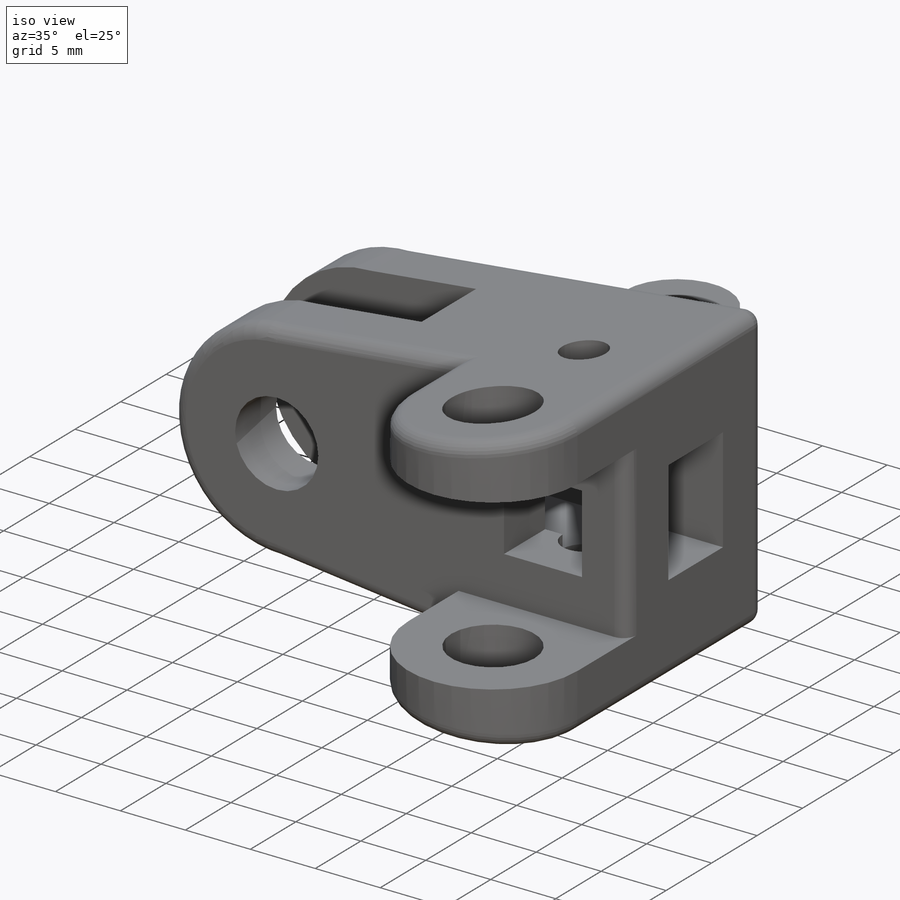
[diagram: iso view]
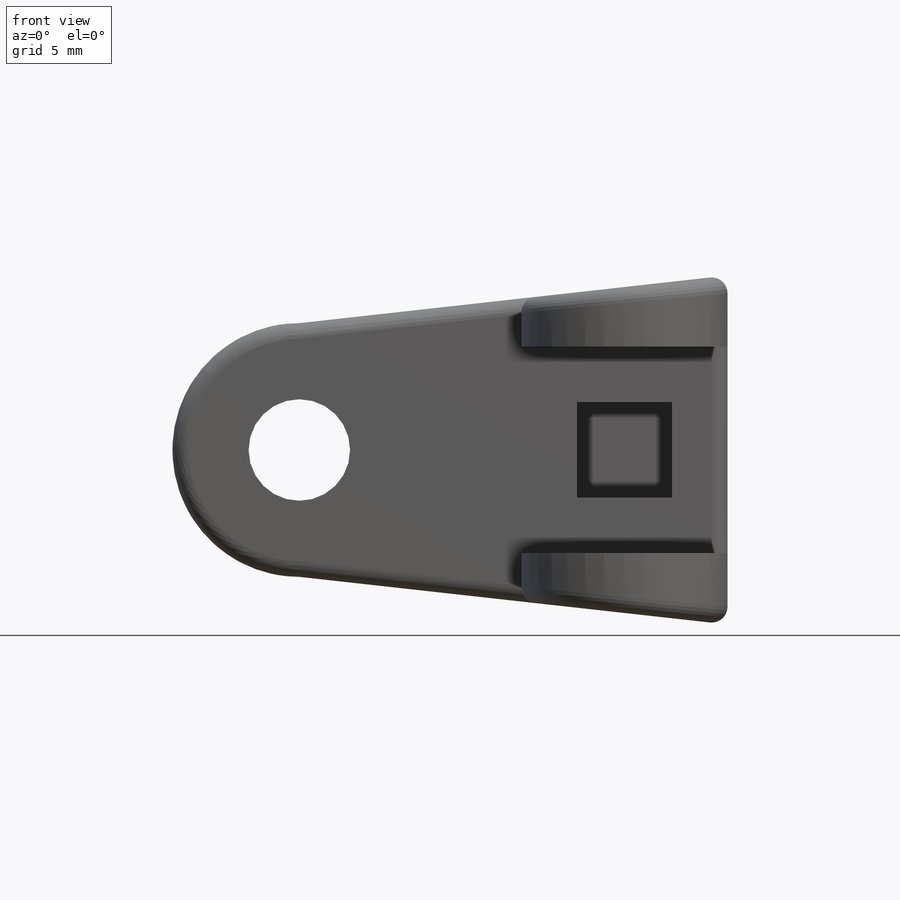
[diagram: front view]
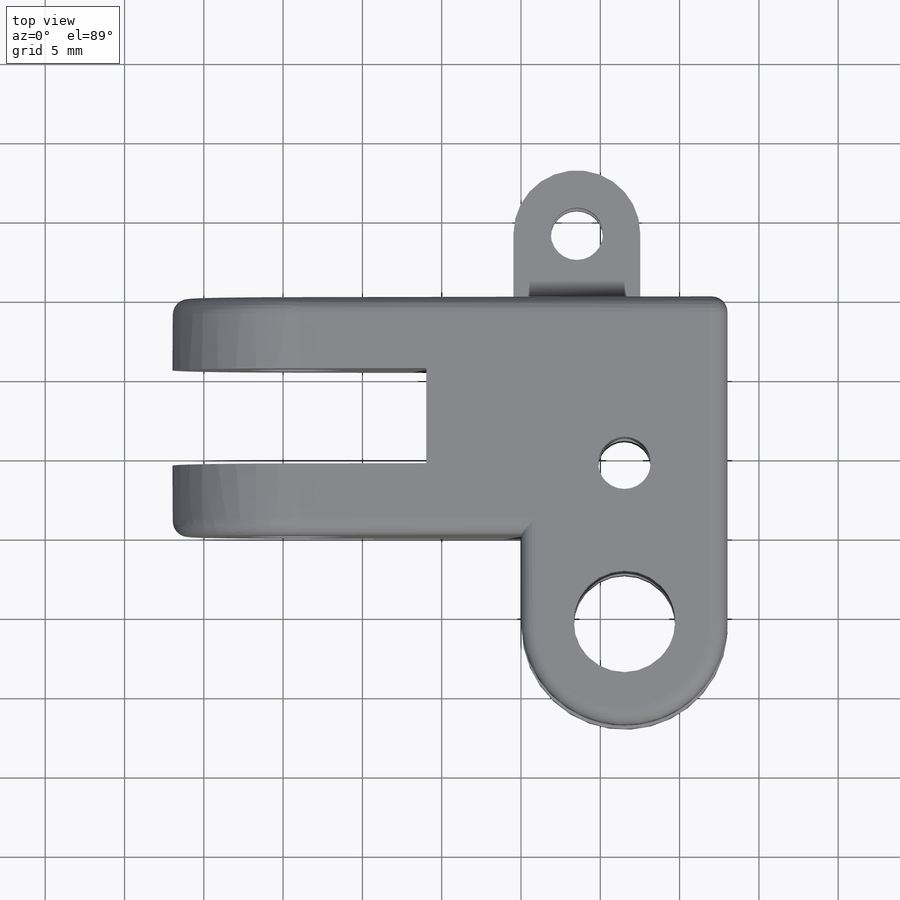
[diagram: top view]
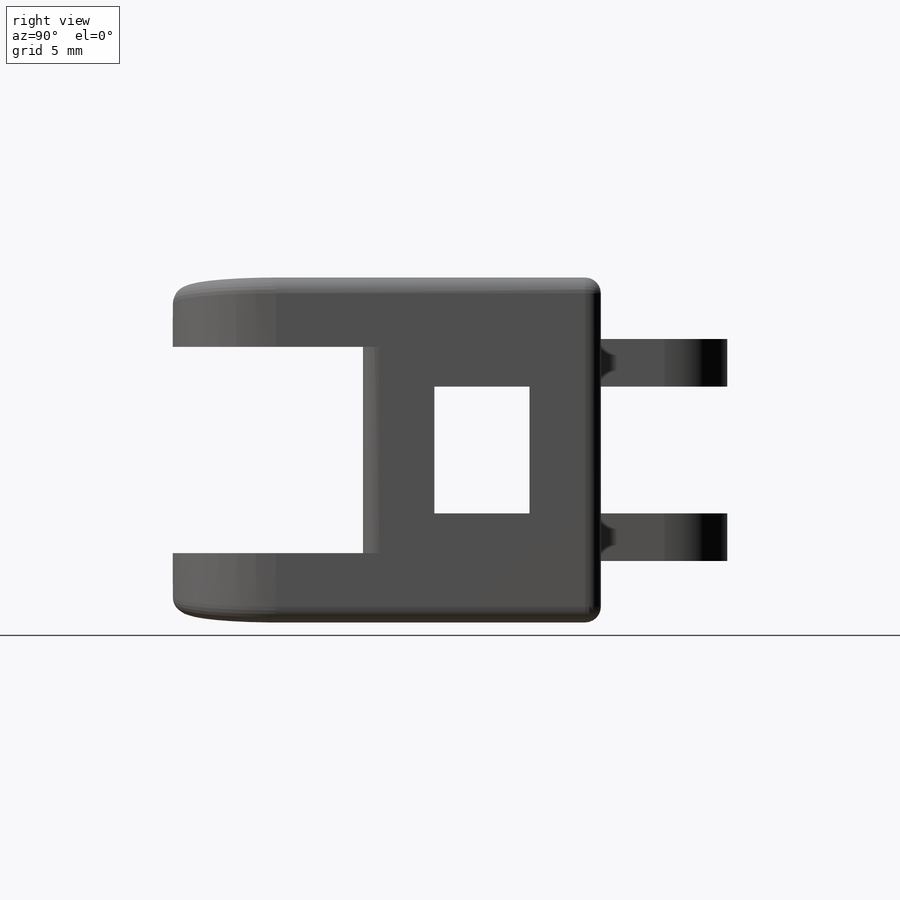
[diagram: right view]
SOLIDWORKS PART (.sldprt)
format: sldprt  version: not decoded by parser v0  size: 451,584 bytes
history: native  units: mm
features: sketch x9, cut_extrude x6, extrude x3, material x1, fillet x1 (+13 scaffold rows collapsed)
feature tree (33):
  scaffold x13  (default folders/planes/origin — collapsed)
  material  "Material <not specified>"
  sketch  "Sketch1"  dims[D1=3.0mm]
  extrude  "Boss-Extrude1"  Depth=15mm
  sketch  "Sketch6"  dims[D1=13.0mm]
  extrude  "Boss-Extrude3"  Depth=12mm
  sketch  "Sketch9"  dims[D1=4.5mm]
  cut_extrude  "Cut-Extrude2"  Depth=24mm
  sketch  "Sketch11"  dims[D1=6.5mm]
  cut_extrude  "Cut-Extrude3"  Depth=13mm
  sketch  "Sketch12"  dims[D1=4.0mm]
  extrude  "Boss-Extrude4"  Depth=8mm
  sketch  "Sketch14"  dims[D1=~2.485252mm]
  cut_extrude  "Cut-Extrude4"  Depth=14mm
  sketch  "Sketch19"  dims[D1=3.0mm]
  cut_extrude  "Cut-Extrude7"  Depth=20mm
  sketch  "Sketch20"
  cut_extrude  "Cut-Extrude8"  Depth=20mm
  sketch  "Sketch21"  dims[D1=6.0mm]
  cut_extrude  "Cut-Extrude9"  Depth=5mm
  fillet  "Fillet2"  Radius=1mm
decode coverage: 18 of 19 modeling features carry decoded parameters
note: ~ marks probable driven/reference dimensions
note: suppression state not decoded; provenance and decode notes live in map.json
